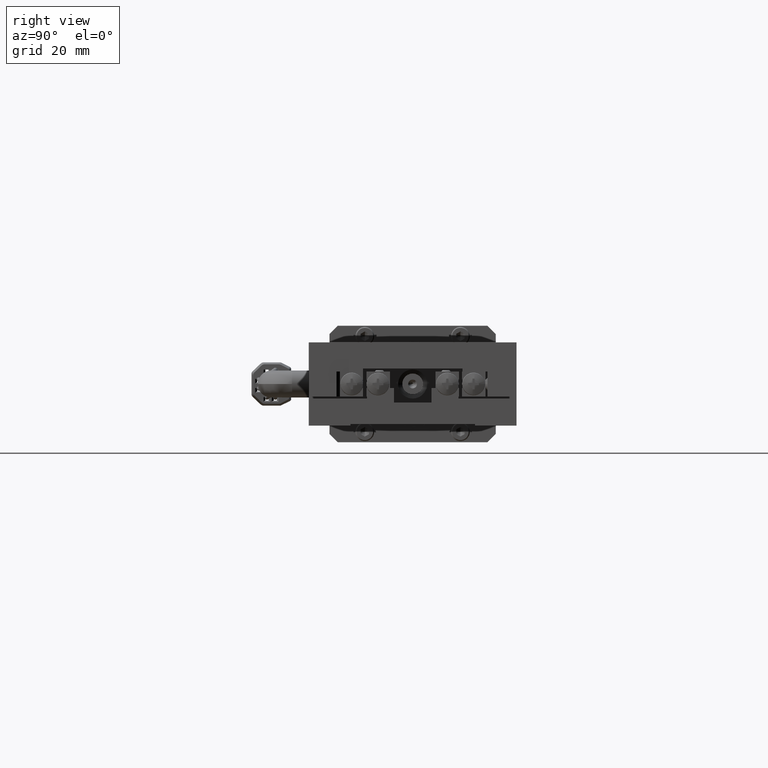
[diagram: clean part render]
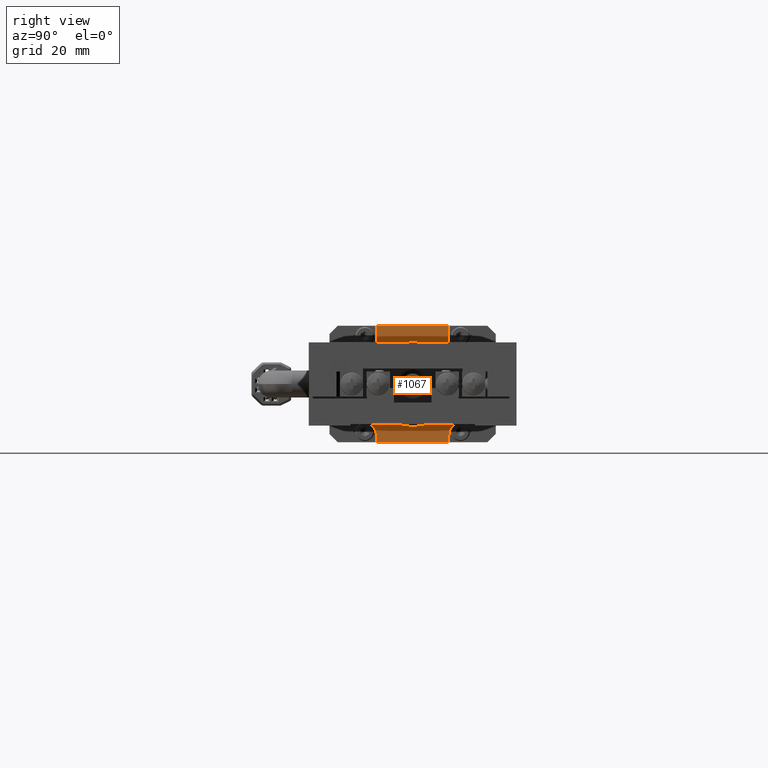
[diagram: same view with one face highlighted and labeled with its STEP entity id]
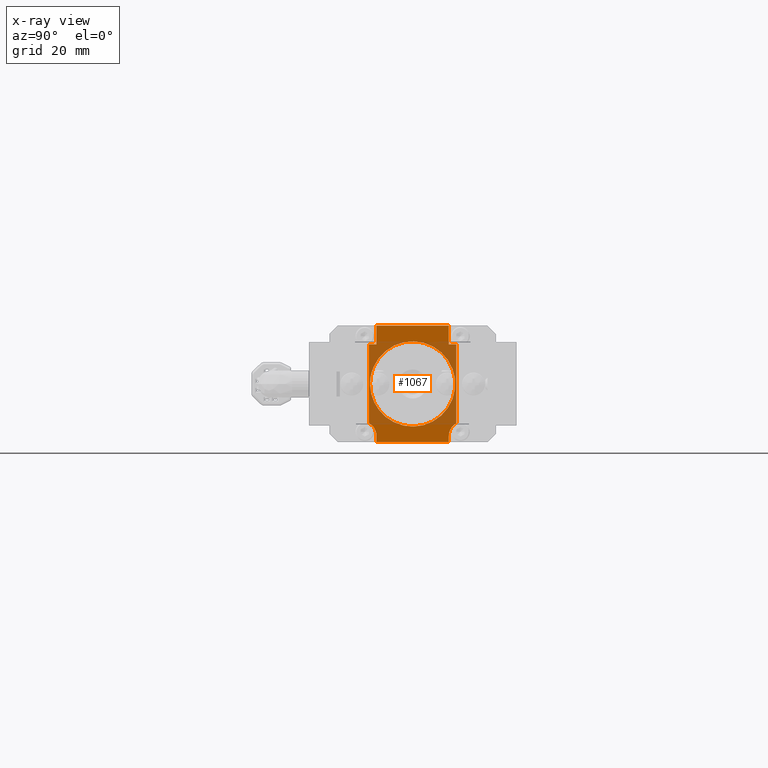
[diagram: x-ray of the same camera — body ghosted, the highlighted face saturated]
A machine part, right view. The second image highlights one B-rep face of the part: STEP entity #1067.
The next image is the same camera in x-ray: the body ghosted, the highlighted face saturated — about 38% of this face is hidden behind the body in this view.
In plain terms, the highlighted planar face has unit normal (1, 0, 0).
Its self-contained STEP definition (entity closure, byte-faithful):
#1067=ADVANCED_FACE('',(#10752,#10753),#10751,.T.);
#10751=PLANE('',#30483);
#10752=FACE_OUTER_BOUND('',#30484,.T.);
#10753=FACE_BOUND('',#30485,.T.);
#30480=CARTESIAN_POINT('',(-6.35000000000E+001,-1.26000011797E+001,-6.79999999998E+000));
#30481=DIRECTION('',(1.00000000000E+000,0.00000000000E+000,0.00000000000E+000));
#30482=DIRECTION('',(0.00000000000E+000,1.00000000000E+000,0.00000000000E+000));
#30483=AXIS2_PLACEMENT_3D('',#30480,#30481,#30482);
#30484=EDGE_LOOP('',(#45161,#45162,#45163,#45164,#45165,#45166,#45167,#45168,#45169,#45170,#45171,#45172));
#30485=EDGE_LOOP('',(#45173,#45174,#45175));
#45161=ORIENTED_EDGE('',*,*,#54140,.T.);
#45162=ORIENTED_EDGE('',*,*,#53800,.T.);
#45163=ORIENTED_EDGE('',*,*,#54125,.F.);
#45164=ORIENTED_EDGE('',*,*,#54141,.F.);
#45165=ORIENTED_EDGE('',*,*,#54082,.T.);
#45166=ORIENTED_EDGE('',*,*,#54142,.F.);
#45167=ORIENTED_EDGE('',*,*,#54126,.F.);
#45168=ORIENTED_EDGE('',*,*,#53783,.F.);
#45169=ORIENTED_EDGE('',*,*,#54143,.T.);
#45170=ORIENTED_EDGE('',*,*,#54144,.T.);
#45171=ORIENTED_EDGE('',*,*,#54145,.T.);
#45172=ORIENTED_EDGE('',*,*,#54146,.T.);
#45173=ORIENTED_EDGE('',*,*,#54147,.T.);
#45174=ORIENTED_EDGE('',*,*,#54148,.T.);
#45175=ORIENTED_EDGE('',*,*,#54149,.T.);
#53783=EDGE_CURVE('',#69759,#69766,#69767,.T.);
#53800=EDGE_CURVE('',#69881,#69874,#69882,.T.);
#54082=EDGE_CURVE('',#71738,#71784,#71791,.T.);
#54125=EDGE_CURVE('',#72078,#69874,#72085,.T.);
#54126=EDGE_CURVE('',#69766,#72091,#72092,.T.);
#54140=EDGE_CURVE('',#72185,#69881,#72186,.T.);
#54141=EDGE_CURVE('',#71738,#72078,#72192,.T.);
#54142=EDGE_CURVE('',#72091,#71784,#72198,.T.);
#54143=EDGE_CURVE('',#69759,#72204,#72205,.T.);
#54144=EDGE_CURVE('',#72204,#72211,#72212,.T.);
#54145=EDGE_CURVE('',#72211,#72218,#72219,.T.);
#54146=EDGE_CURVE('',#72218,#72185,#72225,.T.);
#54147=EDGE_CURVE('',#72231,#72232,#72233,.T.);
#54148=EDGE_CURVE('',#72232,#72239,#72240,.T.);
#54149=EDGE_CURVE('',#72239,#72231,#72246,.T.);
#69759=VERTEX_POINT('',#99996);
#69766=VERTEX_POINT('',#100000);
#69767=LINE('',#100001,#100002);
#69874=VERTEX_POINT('',#100064);
#69881=VERTEX_POINT('',#100068);
#69882=LINE('',#100069,#100070);
#71738=VERTEX_POINT('',#101224);
#71784=VERTEX_POINT('',#101249);
#71791=LINE('',#101253,#101254);
#72078=VERTEX_POINT('',#101446);
#72085=LINE('',#101450,#101451);
#72091=VERTEX_POINT('',#101453);
#72092=LINE('',#101454,#101455);
#72185=VERTEX_POINT('',#101515);
#72186=CIRCLE('',#101519,3.50000000000E+000);
#72192=LINE('',#101520,#101521);
#72198=LINE('',#101523,#101524);
#72204=VERTEX_POINT('',#101526);
#72205=CIRCLE('',#101530,3.50000000000E+000);
#72211=VERTEX_POINT('',#101531);
#72212=LINE('',#101532,#101533);
#72218=VERTEX_POINT('',#101535);
#72219=LINE('',#101536,#101537);
#72225=LINE('',#101539,#101540);
#72231=VERTEX_POINT('',#101542);
#72232=VERTEX_POINT('',#101543);
#72233=CIRCLE('',#101547,1.02500000000E+001);
#72239=VERTEX_POINT('',#101548);
#72240=CIRCLE('',#101552,1.02500000000E+001);
#72246=CIRCLE('',#101556,1.02500000000E+001);
#99996=CARTESIAN_POINT('',(-6.35000000000E+001,-1.05000000000E+001,5.59412304056E-001));
#100000=CARTESIAN_POINT('',(-6.35000000000E+001,-1.05000010724E+001,1.95000000000E+001));
#100001=CARTESIAN_POINT('',(-6.35000000000E+001,-1.05000000000E+001,5.59412304056E-001));
#100002=VECTOR('',#100003,1.89405876960E+001);
#100003=DIRECTION('',(0.00000000000E+000,0.00000000000E+000,1.00000000000E+000));
#100064=CARTESIAN_POINT('',(-6.35000000000E+001,1.04999989276E+001,1.95000000000E+001));
#100068=CARTESIAN_POINT('',(-6.35000000000E+001,1.05000000000E+001,5.59411112235E-001));
#100069=CARTESIAN_POINT('',(-6.35000000000E+001,1.05000000000E+001,5.59411112235E-001));
#100070=VECTOR('',#100071,1.89405888878E+001);
#100071=DIRECTION('',(0.00000000000E+000,0.00000000000E+000,1.00000000000E+000));
#101224=CARTESIAN_POINT('',(-6.35000000000E+001,8.69999999999E+000,2.40000000000E+001));
#101249=CARTESIAN_POINT('',(-6.35000000000E+001,-8.69999999999E+000,2.40000000000E+001));
#101253=CARTESIAN_POINT('',(-6.35000000000E+001,8.69999999999E+000,2.40000000000E+001));
#101254=VECTOR('',#101255,1.74000000000E+001);
#101255=DIRECTION('',(0.00000000000E+000,-1.00000000000E+000,0.00000000000E+000));
#101446=CARTESIAN_POINT('',(-6.35000000000E+001,8.69999999999E+000,1.95000000000E+001));
#101450=CARTESIAN_POINT('',(-6.35000000000E+001,8.69999999999E+000,1.95000000000E+001));
#101451=VECTOR('',#101452,1.79999892760E+000);
#101452=DIRECTION('',(0.00000000000E+000,1.00000000000E+000,0.00000000000E+000));
#101453=CARTESIAN_POINT('',(-6.35000000000E+001,-8.69999999999E+000,1.95000000000E+001));
#101454=CARTESIAN_POINT('',(-6.35000000000E+001,-1.05000010724E+001,1.95000000000E+001));
#101455=VECTOR('',#101456,1.80000107246E+000);
#101456=DIRECTION('',(0.00000000000E+000,1.00000000000E+000,0.00000000000E+000));
#101515=CARTESIAN_POINT('',(-6.35000000000E+001,8.70000107244E+000,-2.50000000001E+000));
#101516=CARTESIAN_POINT('',(-6.35000000000E+001,1.22000010724E+001,-2.50000000001E+000));
#101517=DIRECTION('',(-1.00000000000E+000,0.00000000000E+000,0.00000000000E+000));
#101518=DIRECTION('',(-0.00000000000E+000,-1.00000000000E+000,-0.00000000000E+000));
#101519=AXIS2_PLACEMENT_3D('',#101516,#101517,#101518);
#101520=CARTESIAN_POINT('',(-6.35000000000E+001,8.69999999999E+000,2.40000000000E+001));
#101521=VECTOR('',#101522,4.49999999995E+000);
#101522=DIRECTION('',(0.00000000000E+000,0.00000000000E+000,-1.00000000000E+000));
#101523=CARTESIAN_POINT('',(-6.35000000000E+001,-8.69999999999E+000,1.95000000000E+001));
#101524=VECTOR('',#101525,4.49999999995E+000);
#101525=DIRECTION('',(0.00000000000E+000,0.00000000000E+000,1.00000000000E+000));
#101526=CARTESIAN_POINT('',(-6.35000000000E+001,-8.69999892758E+000,-2.50000000001E+000));
#101527=CARTESIAN_POINT('',(-6.35000000000E+001,-1.21999989276E+001,-2.50000000001E+000));
#101528=DIRECTION('',(-1.00000000000E+000,0.00000000000E+000,0.00000000000E+000));
#101529=DIRECTION('',(-0.00000000000E+000,-1.00000000000E+000,-0.00000000000E+000));
#101530=AXIS2_PLACEMENT_3D('',#101527,#101528,#101529);
#101531=CARTESIAN_POINT('',(-6.35000000000E+001,-8.69999892758E+000,-3.99999999999E+000));
#101532=CARTESIAN_POINT('',(-6.35000000000E+001,-8.69999892758E+000,-2.50000000001E+000));
#101533=VECTOR('',#101534,1.49999999998E+000);
#101534=DIRECTION('',(0.00000000000E+000,0.00000000000E+000,-1.00000000000E+000));
#101535=CARTESIAN_POINT('',(-6.35000000000E+001,8.70000107244E+000,-3.99999999999E+000));
#101536=CARTESIAN_POINT('',(-6.35000000000E+001,-8.69999892758E+000,-3.99999999999E+000));
#101537=VECTOR('',#101538,1.74000000000E+001);
#101538=DIRECTION('',(0.00000000000E+000,1.00000000000E+000,0.00000000000E+000));
#101539=CARTESIAN_POINT('',(-6.35000000000E+001,8.70000107244E+000,-3.99999999999E+000));
#101540=VECTOR('',#101541,1.49999999998E+000);
#101541=DIRECTION('',(0.00000000000E+000,0.00000000000E+000,1.00000000000E+000));
#101542=CARTESIAN_POINT('',(-6.34999999999E+001,-1.02500010725E+001,1.00000000000E+001));
#101543=CARTESIAN_POINT('',(-6.34999999999E+001,-9.41221203631E+000,1.40586678568E+001));
#101544=CARTESIAN_POINT('',(-6.34999999999E+001,-1.07245335812E-006,1.00000000000E+001));
#101545=DIRECTION('',(-1.00000000000E+000,-0.00000000000E+000,0.00000000000E+000));
#101546=DIRECTION('',(0.00000000000E+000,-1.00000000000E+000,-1.22464679915E-016));
#101547=AXIS2_PLACEMENT_3D('',#101544,#101545,#101546);
#101548=CARTESIAN_POINT('',(-6.34999999999E+001,-4.49330532820E+000,7.87361026021E-001));
#101549=CARTESIAN_POINT('',(-6.34999999999E+001,-1.07245335812E-006,1.00000000000E+001));
#101550=DIRECTION('',(-1.00000000000E+000,-0.00000000000E+000,0.00000000000E+000));
#101551=DIRECTION('',(0.00000000000E+000,-1.00000000000E+000,-1.22464679915E-016));
#101552=AXIS2_PLACEMENT_3D('',#101549,#101550,#101551);
#101553=CARTESIAN_POINT('',(-6.34999999999E+001,-1.07245335812E-006,1.00000000000E+001));
#101554=DIRECTION('',(-1.00000000000E+000,-0.00000000000E+000,0.00000000000E+000));
#101555=DIRECTION('',(0.00000000000E+000,-1.00000000000E+000,-1.22464679915E-016));
#101556=AXIS2_PLACEMENT_3D('',#101553,#101554,#101555);